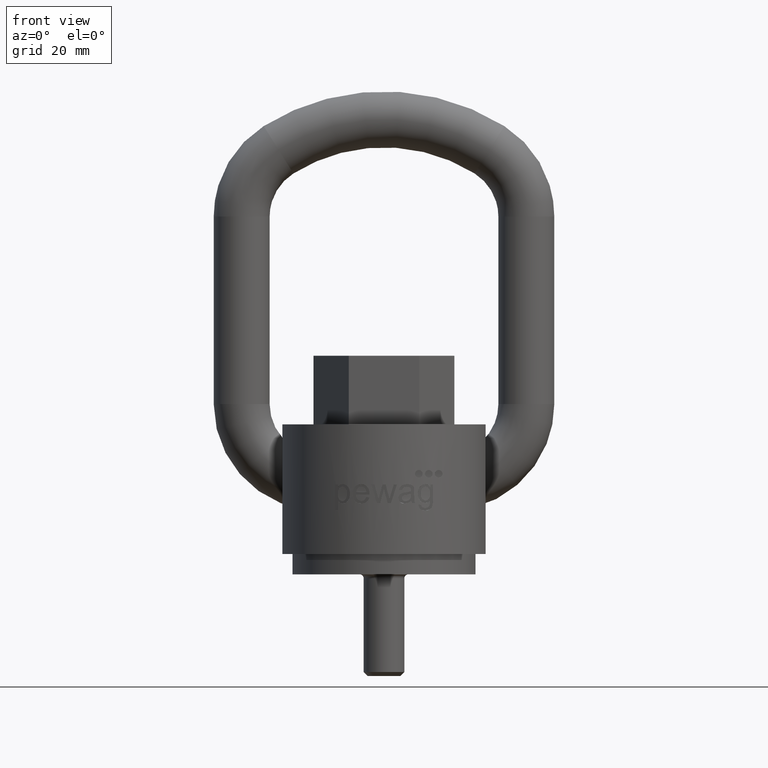
[diagram: clean part render]
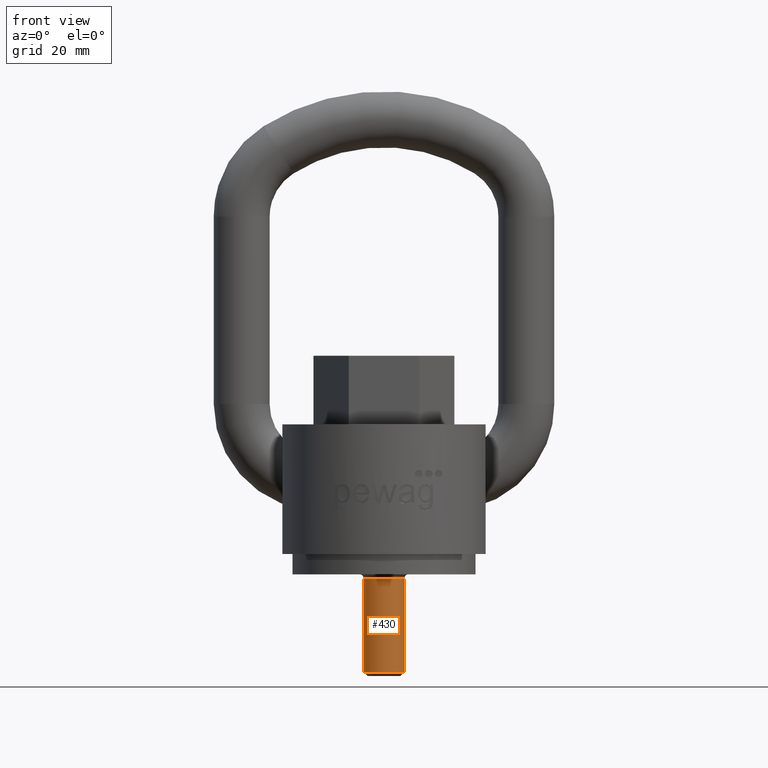
[diagram: same view with one face highlighted and labeled with its STEP entity id]
A machine part, front view. The second image highlights one B-rep face of the part: STEP entity #430.
In plain terms, the highlighted cylindrical surface (bore or boss wall) has radius 4 mm, axis along (0, 0, 1).
Its self-contained STEP definition (entity closure, byte-faithful):
#430=ADVANCED_FACE('',(#589,#590),#539,.T.);
#539=CYLINDRICAL_SURFACE('',#2480,4.);
#589=FACE_BOUND('',#664,.T.);
#590=FACE_BOUND('',#665,.T.);
#664=EDGE_LOOP('',(#1294));
#665=EDGE_LOOP('',(#1295));
#1108=CIRCLE('',#2478,4.);
#1109=CIRCLE('',#2479,4.);
#1294=ORIENTED_EDGE('',*,*,#2060,.T.);
#1295=ORIENTED_EDGE('',*,*,#2061,.T.);
#1834=VERTEX_POINT('',#3903);
#1835=VERTEX_POINT('',#3905);
#2060=EDGE_CURVE('',#1834,#1834,#1108,.T.);
#2061=EDGE_CURVE('',#1835,#1835,#1109,.T.);
#2478=AXIS2_PLACEMENT_3D('',#3902,#2722,#2723);
#2479=AXIS2_PLACEMENT_3D('',#3904,#2724,#2725);
#2480=AXIS2_PLACEMENT_3D('',#3906,#2726,#2727);
#2722=DIRECTION('',(0.,0.,1.));
#2723=DIRECTION('',(-1.,0.,0.));
#2724=DIRECTION('',(0.,0.,-1.));
#2725=DIRECTION('',(-1.,0.,0.));
#2726=DIRECTION('',(0.,0.,1.));
#2727=DIRECTION('',(1.,0.,0.));
#3902=CARTESIAN_POINT('',(0.,0.,-23.1999999999999));
#3903=CARTESIAN_POINT('',(-4.,0.,-23.1999999999999));
#3904=CARTESIAN_POINT('',(0.,0.,-4.79999999999993));
#3905=CARTESIAN_POINT('',(-4.,0.,-4.79999999999993));
#3906=CARTESIAN_POINT('',(0.,0.,-23.9999999999999));